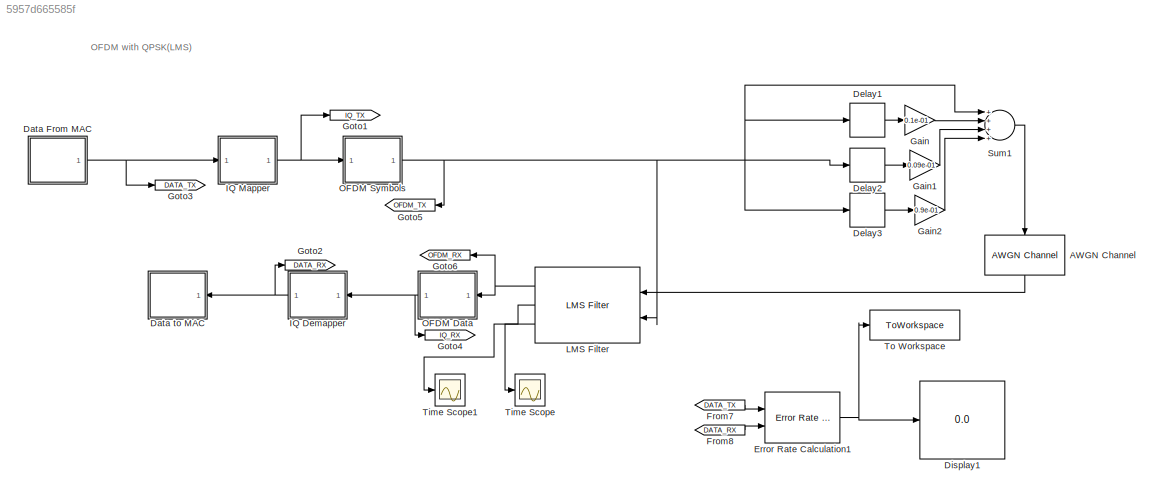
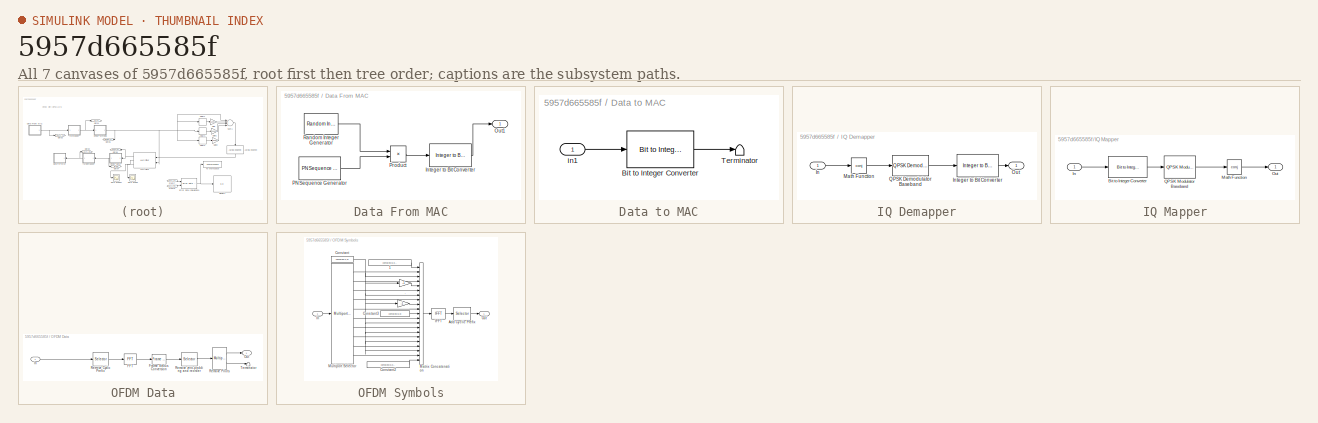
[diagram: thumbnail index - all 7 canvases of the model, root first then tree order]
MODEL slx_5957d665585f
KIND model
CONFIG AbsTol = auto
CONFIG EnableMultiTasking = off
CONFIG FixedStep = auto
CONFIG MaxStep = auto
CONFIG MinStep = auto
CONFIG RelTol = 1e-3
CONFIG SampleTimeConstraint = Unconstrained
CONFIG Solver = VariableStepAuto
CONFIG SolverName = VariableStepAuto
CONFIG StartTime = 0.0
CONFIG StopTime = 10.0
BLOCK [Reference] AWGN Channel  REF=commchan3/AWGN
Channel
  Ports = [1, 1]
  SourceBlock = commchan3/AWGN\nChannel
  SourceProductBaseCode = CM
  SourceProductName = Communications Toolbox
  SourceType = AWGN Channel
BLOCK [SubSystem] Data From MAC
  Ports = [0, 1]
  RequestExecContextInheritance = off
BLOCK [Reference] Data From MAC/Integer to Bit Converter  REF=commutil2/Integer to Bit
Converter
  Ports = [1, 1]
  SourceBlock = commutil2/Integer to Bit\nConverter
  SourceProductBaseCode = CM
  SourceProductName = Communications Toolbox
  SourceType = Integer to Bit Converter
BLOCK [Outport] Data From MAC/Out1
  IconDisplay = Port number
BLOCK [Reference] Data From MAC/PN Sequence Generator  REF=commseqgen2/PN Sequence
Generator
  Ports = [0, 1]
  SourceBlock = commseqgen2/PN Sequence\nGenerator
  SourceProductBaseCode = CM
  SourceProductName = Communications Toolbox
  SourceType = PN Sequence Generator
BLOCK [Product] Data From MAC/Product
  InputSameDT = off
  OutDataTypeStr = Inherit: Inherit via internal rule
  Ports = [2, 1]
  SaturateOnIntegerOverflow = off
BLOCK [Reference] Data From MAC/Random Integer Generator  REF=commrandsrc2/Random Integer
Generator
  Ports = [0, 1]
  SourceBlock = commrandsrc2/Random Integer\nGenerator
  SourceProductBaseCode = CM
  SourceProductName = Communications Toolbox
  SourceType = Random Integer Generator
BLOCK [SubSystem] Data to MAC
  Ports = [1]
  RequestExecContextInheritance = off
BLOCK [Reference] Data to MAC/Bit to Integer Converter  REF=commutil2/Bit to Integer
Converter
  Ports = [1, 1]
  SourceBlock = commutil2/Bit to Integer\nConverter
  SourceProductBaseCode = CM
  SourceProductName = Communications Toolbox
  SourceType = Bit to Integer Converter
BLOCK [Terminator] Data to MAC/Terminator
BLOCK [Inport] Data to MAC/in1
  IconDisplay = Port number
BLOCK [Delay] Delay1
  DelayLength = 1
  InputPortMap = u0
  InputProcessing = Columns as channels (frame based)
  Ports = [1, 1]
BLOCK [Delay] Delay2
  InputPortMap = u0
  InputProcessing = Columns as channels (frame based)
  Ports = [1, 1]
BLOCK [Delay] Delay3
  DelayLength = 3
  InputPortMap = u0
  InputProcessing = Columns as channels (frame based)
  Ports = [1, 1]
BLOCK [Display] Display1
  Decimation = 1
  Ports = [1]
BLOCK [Reference] Error Rate Calculation1  REF=commsink2/Error Rate
Calculation
  Ports = [2, 1]
  SourceBlock = commsink2/Error Rate\nCalculation
  SourceProductBaseCode = CM
  SourceProductName = Communications Toolbox
  SourceType = Error Rate Calculation
BLOCK [From] From7
  CloseFcn = tagdialog Close
  GotoTag = DATA_TX
  IconDisplay = Signal name
  TagVisibility = global
BLOCK [From] From8
  CloseFcn = tagdialog Close
  GotoTag = DATA_RX
  IconDisplay = Signal name
  TagVisibility = global
BLOCK [Gain] Gain
  Gain = 0.1e-01
  OutDataTypeStr = Inherit: Inherit via internal rule
  ParamDataTypeStr = Inherit: Inherit via internal rule
  SaturateOnIntegerOverflow = off
BLOCK [Gain] Gain1
  Gain = 0.09e-01
  OutDataTypeStr = Inherit: Inherit via internal rule
  ParamDataTypeStr = Inherit: Inherit via internal rule
  SaturateOnIntegerOverflow = off
BLOCK [Gain] Gain2
  Gain = 0.9e-01
  OutDataTypeStr = Inherit: Inherit via internal rule
  ParamDataTypeStr = Inherit: Inherit via internal rule
  SaturateOnIntegerOverflow = off
BLOCK [Goto] Goto1
  GotoTag = IQ_TX
  IconDisplay = Signal name
  TagVisibility = global
BLOCK [Goto] Goto2
  GotoTag = DATA_RX
  IconDisplay = Signal name
  TagVisibility = global
BLOCK [Goto] Goto3
  GotoTag = DATA_TX
  IconDisplay = Signal name
  TagVisibility = global
BLOCK [Goto] Goto4
  GotoTag = IQ_RX
  IconDisplay = Signal name
  TagVisibility = global
BLOCK [Goto] Goto5
  GotoTag = OFDM_TX
  IconDisplay = Signal name
  TagVisibility = global
BLOCK [Goto] Goto6
  GotoTag = OFDM_RX
  IconDisplay = Signal name
  TagVisibility = global
BLOCK [SubSystem] IQ Demapper
  Ports = [1, 1]
  RequestExecContextInheritance = off
BLOCK [Inport] IQ Demapper/In
  IconDisplay = Port number
BLOCK [Reference] IQ Demapper/Integer to Bit Converter  REF=commutil2/Integer to Bit
Converter
  Ports = [1, 1]
  SourceBlock = commutil2/Integer to Bit\nConverter
  SourceProductBaseCode = CM
  SourceProductName = Communications Toolbox
  SourceType = Integer to Bit Converter
BLOCK [Math] IQ Demapper/Math Function
  Operator = conj
  Ports = [1, 1]
BLOCK [Outport] IQ Demapper/Out
  IconDisplay = Port number
BLOCK [Reference] IQ Demapper/QPSK Demodulator Baseband  REF=commdigbbndpm3/QPSK
Demodulator
Baseband
  Ports = [1, 1]
  SourceBlock = commdigbbndpm3/QPSK\nDemodulator\nBaseband
  SourceProductBaseCode = CM
  SourceProductName = Communications Toolbox
  SourceType = QPSK Demodulator Baseband
BLOCK [SubSystem] IQ Mapper
  Ports = [1, 1]
  RequestExecContextInheritance = off
BLOCK [Reference] IQ Mapper/Bit to Integer Converter  REF=commutil2/Bit to Integer
Converter
  Ports = [1, 1]
  SourceBlock = commutil2/Bit to Integer\nConverter
  SourceProductBaseCode = CM
  SourceProductName = Communications Toolbox
  SourceType = Bit to Integer Converter
BLOCK [Inport] IQ Mapper/In
  IconDisplay = Port number
BLOCK [Math] IQ Mapper/Math Function
  Operator = conj
  Ports = [1, 1]
BLOCK [Outport] IQ Mapper/Out
  IconDisplay = Port number
BLOCK [Reference] IQ Mapper/QPSK Modulator Baseband  REF=commdigbbndpm3/QPSK
Modulator
Baseband
  Ports = [1, 1]
  SourceBlock = commdigbbndpm3/QPSK\nModulator\nBaseband
  SourceProductBaseCode = CM
  SourceProductName = Communications Toolbox
  SourceType = QPSK Modulator Baseband
BLOCK [Reference] LMS Filter  REF=dspadpt3/LMS Filter
  Ports = [2, 3]
  SourceBlock = dspadpt3/LMS Filter
  SourceProductBaseCode = DS
  SourceProductName = DSP System Toolbox
  SourceType = LMS Filter
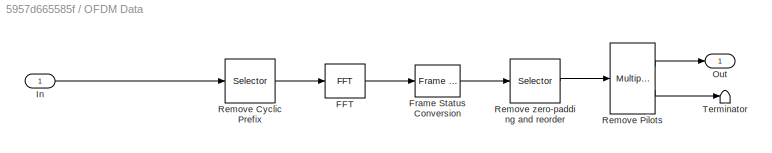
BLOCK [SubSystem] OFDM Data
  Ports = [1, 1]
  RequestExecContextInheritance = off
BLOCK [Reference] OFDM Data/FFT  REF=dspxfrm3/FFT
  Ports = [1, 1]
  SourceBlock = dspxfrm3/FFT
  SourceProductBaseCode = DS
  SourceProductName = DSP System Toolbox
  SourceType = FFT
BLOCK [Reference] OFDM Data/Frame Status Conversion  REF=dspobslib/Frame Status
Conversion
  Ports = [1, 1]
  SourceBlock = dspobslib/Frame Status\nConversion
  SourceProductBaseCode = DS
  SourceProductName = DSP System Toolbox
  SourceType = Frame Status Conversion
BLOCK [Inport] OFDM Data/In
  IconDisplay = Port number
BLOCK [Outport] OFDM Data/Out
  IconDisplay = Port number
BLOCK [Selector] OFDM Data/Remove Cyclic Prefix
  IndexOptions = Index vector (dialog)
  Indices = [65:320]
  InputPortWidth = 320
  OutputSizes = 1
  Ports = [1, 1]
BLOCK [Reference] OFDM Data/Remove Pilots  REF=dspindex/Multiport
Selector
  Ports = [1, 2]
  SourceBlock = dspindex/Multiport\nSelector
  SourceProductBaseCode = DS
  SourceProductName = DSP System Toolbox
  SourceType = Multiport Selector
BLOCK [Selector] OFDM Data/Remove zero-padding and reorder
  IndexOptions = Index vector (dialog)
  Indices = [29:128 130:229]
  InputPortWidth = 256
  OutputSizes = 1
  Ports = [1, 1]
BLOCK [Terminator] OFDM Data/Terminator
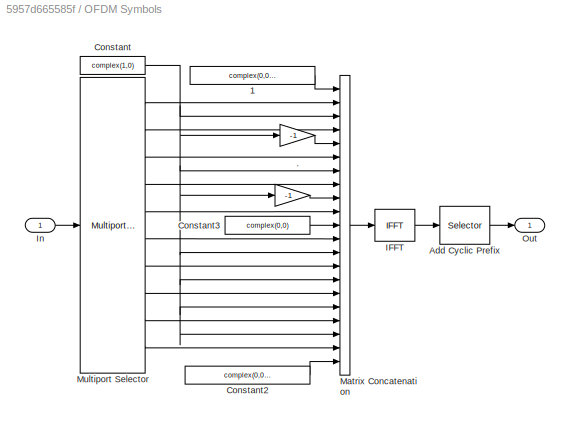
BLOCK [SubSystem] OFDM Symbols
  Ports = [1, 1]
  RequestExecContextInheritance = off
BLOCK [Gain] OFDM Symbols/ 
  Gain = -1
  OutDataTypeStr = Inherit: Inherit via internal rule
  ParamDataTypeStr = Inherit: Inherit via internal rule
  SaturateOnIntegerOverflow = off
BLOCK [Constant] OFDM Symbols/ 1
  Value = complex(0,0)*ones(28,1)
BLOCK [Gain] OFDM Symbols/.
  Gain = -1
  OutDataTypeStr = Inherit: Inherit via internal rule
  ParamDataTypeStr = Inherit: Inherit via internal rule
  SaturateOnIntegerOverflow = off
BLOCK [Selector] OFDM Symbols/Add Cyclic Prefix
  IndexOptions = Index vector (dialog)
  Indices = [193:256 1:256]
  InputPortWidth = 256
  OutputSizes = 1
  Ports = [1, 1]
BLOCK [Constant] OFDM Symbols/Constant
  Value = complex(1,0)
BLOCK [Constant] OFDM Symbols/Constant2
  Value = complex(0,0)*ones(27,1)
BLOCK [Constant] OFDM Symbols/Constant3
  Value = complex(0,0)
BLOCK [Reference] OFDM Symbols/IFFT  REF=dspxfrm3/IFFT
  Ports = [1, 1]
  SourceBlock = dspxfrm3/IFFT
  SourceProductBaseCode = DS
  SourceProductName = DSP System Toolbox
  SourceType = IFFT
BLOCK [Inport] OFDM Symbols/In
  IconDisplay = Port number
BLOCK [Concatenate] OFDM Symbols/Matrix Concatenation
  Mode = Multidimensional array
  NumInputs = 21
  Ports = [21, 1]
BLOCK [Reference] OFDM Symbols/Multiport Selector  REF=dspindex/Multiport
Selector
  Ports = [1, 10]
  SourceBlock = dspindex/Multiport\nSelector
  SourceProductBaseCode = DS
  SourceProductName = DSP System Toolbox
  SourceType = Multiport Selector
BLOCK [Outport] OFDM Symbols/Out
  IconDisplay = Port number
BLOCK [Sum] Sum1
  InputSameDT = off
  Inputs = ++++
  OutDataTypeStr = Inherit: Inherit via internal rule
  Ports = [4, 1]
BLOCK [Scope] Time Scope
  Commented = on
  DefaultConfigurationName = spbscopes.TimeScopeBlockCfg
  Floating = off
  NumInputPorts = 1
  Ports = [1]
  ScopeSpecificationString = spbscopes.TimeScopeBlockCfg('CurrentConfiguration', extmgr.ConfigurationSet(extmgr.Configuration('Core','General UI',true),extmgr.Configuration('Core','Source UI',true),extmgr.Configuration('Sources','WiredSimulink',true,'DataLoggingVariableName','ScopeData1'),extmgr.Configuration('Visuals','Time Domain',true,'DisplayPropertyDefaults',struct('MinYLimReal','-0.11254','MaxYLimReal','0.39236','YLabel...<+1396ch>
  UserDataPersistent = on
BLOCK [Scope] Time Scope1
  Commented = on
  DefaultConfigurationName = spbscopes.TimeScopeBlockCfg
  Floating = off
  NumInputPorts = 1
  Ports = [1]
  ScopeSpecificationString = spbscopes.TimeScopeBlockCfg('CurrentConfiguration', extmgr.ConfigurationSet(extmgr.Configuration('Core','General UI',true),extmgr.Configuration('Core','Source UI',true),extmgr.Configuration('Sources','WiredSimulink',true),extmgr.Configuration('Visuals','Time Domain',true,'DisplayPropertyDefaults',struct('MinYLimReal','-0.62112','MaxYLimReal','0.62861','YLabelReal','Amplitude','MinYLimMag','0.00000...<+1386ch>
  UserDataPersistent = on
BLOCK [ToWorkspace] To Workspace
  FixptAsFi = on
  MaxDataPoints = inf
  Ports = [1]
  SampleTime = -1
  SaveFormat = Timeseries
  VariableName = BER
ANNOTATION (root): OFDM with QPSK(LMS)
LINE AWGN Channel:1 -> LMS Filter:1
LINE Data From MAC/Integer to Bit Converter:1 -> Data From MAC/Out1:1
LINE Data From MAC/PN Sequence Generator:1 -> Data From MAC/Product:2
LINE Data From MAC/Product:1 -> Data From MAC/Integer to Bit Converter:1
LINE Data From MAC/Random Integer Generator:1 -> Data From MAC/Product:1
NET Data From MAC:1 -> Goto3:1, IQ Mapper:1
LINE Data to MAC/Bit to Integer Converter:1 -> Data to MAC/Terminator:1
LINE Data to MAC/in1:1 -> Data to MAC/Bit to Integer Converter:1
LINE Delay1:1 -> Gain:1
LINE Delay2:1 -> Gain1:1
LINE Delay3:1 -> Gain2:1
NET Error Rate Calculation1:1 -> Display1:1, To Workspace:1
LINE From7:1 -> Error Rate Calculation1:1
LINE From8:1 -> Error Rate Calculation1:2
LINE Gain1:1 -> Sum1:3
LINE Gain2:1 -> Sum1:4
LINE Gain:1 -> Sum1:2
LINE IQ Demapper/In:1 -> IQ Demapper/Math Function:1
LINE IQ Demapper/Integer to Bit Converter:1 -> IQ Demapper/Out:1
LINE IQ Demapper/Math Function:1 -> IQ Demapper/QPSK Demodulator Baseband:1
LINE IQ Demapper/QPSK Demodulator Baseband:1 -> IQ Demapper/Integer to Bit Converter:1
NET IQ Demapper:1 -> Data to MAC:1, Goto2:1
LINE IQ Mapper/Bit to Integer Converter:1 -> IQ Mapper/QPSK Modulator Baseband:1
LINE IQ Mapper/In:1 -> IQ Mapper/Bit to Integer Converter:1
LINE IQ Mapper/Math Function:1 -> IQ Mapper/Out:1
LINE IQ Mapper/QPSK Modulator Baseband:1 -> IQ Mapper/Math Function:1
NET IQ Mapper:1 -> Goto1:1, OFDM Symbols:1
NET LMS Filter:1 -> Goto6:1, OFDM Data:1
LINE LMS Filter:2 -> Time Scope1:1
LINE LMS Filter:3 -> Time Scope:1
LINE OFDM Data/FFT:1 -> OFDM Data/Frame Status Conversion:1
LINE OFDM Data/Frame Status Conversion:1 -> OFDM Data/Remove zero-padding and reorder:1
LINE OFDM Data/In:1 -> OFDM Data/Remove Cyclic Prefix:1
LINE OFDM Data/Remove Cyclic Prefix:1 -> OFDM Data/FFT:1
LINE OFDM Data/Remove Pilots:1 -> OFDM Data/Out:1
LINE OFDM Data/Remove Pilots:2 -> OFDM Data/Terminator:1
LINE OFDM Data/Remove zero-padding and reorder:1 -> OFDM Data/Remove Pilots:1
NET OFDM Data:1 -> Goto4:1, IQ Demapper:1
LINE OFDM Symbols/ 1:1 -> OFDM Symbols/Matrix Concatenation:1
LINE OFDM Symbols/ :1 -> OFDM Symbols/Matrix Concatenation:9
LINE OFDM Symbols/.:1 -> OFDM Symbols/Matrix Concatenation:5
LINE OFDM Symbols/Add Cyclic Prefix:1 -> OFDM Symbols/Out:1
LINE OFDM Symbols/Constant2:1 -> OFDM Symbols/Matrix Concatenation:21
LINE OFDM Symbols/Constant3:1 -> OFDM Symbols/Matrix Concatenation:11
NET OFDM Symbols/Constant:1 -> OFDM Symbols/ :1, OFDM Symbols/.:1, OFDM Symbols/Matrix Concatenation:13, OFDM Symbols/Matrix Concatenation:15, OFDM Symbols/Matrix Concatenation:17, OFDM Symbols/Matrix Concatenation:19, OFDM Symbols/Matrix Concatenation:3, OFDM Symbols/Matrix Concatenation:7
LINE OFDM Symbols/IFFT:1 -> OFDM Symbols/Add Cyclic Prefix:1
LINE OFDM Symbols/In:1 -> OFDM Symbols/Multiport Selector:1
LINE OFDM Symbols/Matrix Concatenation:1 -> OFDM Symbols/IFFT:1
LINE OFDM Symbols/Multiport Selector:1 -> OFDM Symbols/Matrix Concatenation:2
LINE OFDM Symbols/Multiport Selector:10 -> OFDM Symbols/Matrix Concatenation:20
LINE OFDM Symbols/Multiport Selector:2 -> OFDM Symbols/Matrix Concatenation:4
LINE OFDM Symbols/Multiport Selector:3 -> OFDM Symbols/Matrix Concatenation:6
LINE OFDM Symbols/Multiport Selector:4 -> OFDM Symbols/Matrix Concatenation:8
LINE OFDM Symbols/Multiport Selector:5 -> OFDM Symbols/Matrix Concatenation:10
LINE OFDM Symbols/Multiport Selector:6 -> OFDM Symbols/Matrix Concatenation:12
LINE OFDM Symbols/Multiport Selector:7 -> OFDM Symbols/Matrix Concatenation:14
LINE OFDM Symbols/Multiport Selector:8 -> OFDM Symbols/Matrix Concatenation:16
LINE OFDM Symbols/Multiport Selector:9 -> OFDM Symbols/Matrix Concatenation:18
NET OFDM Symbols:1 -> Delay1:1, Delay2:1, Delay3:1, Goto5:1, LMS Filter:2, Sum1:1
LINE Sum1:1 -> AWGN Channel:1
note: NET lines group one-source signal fan-out (src -> all destinations, sorted); 1:1 wires keep LINE
